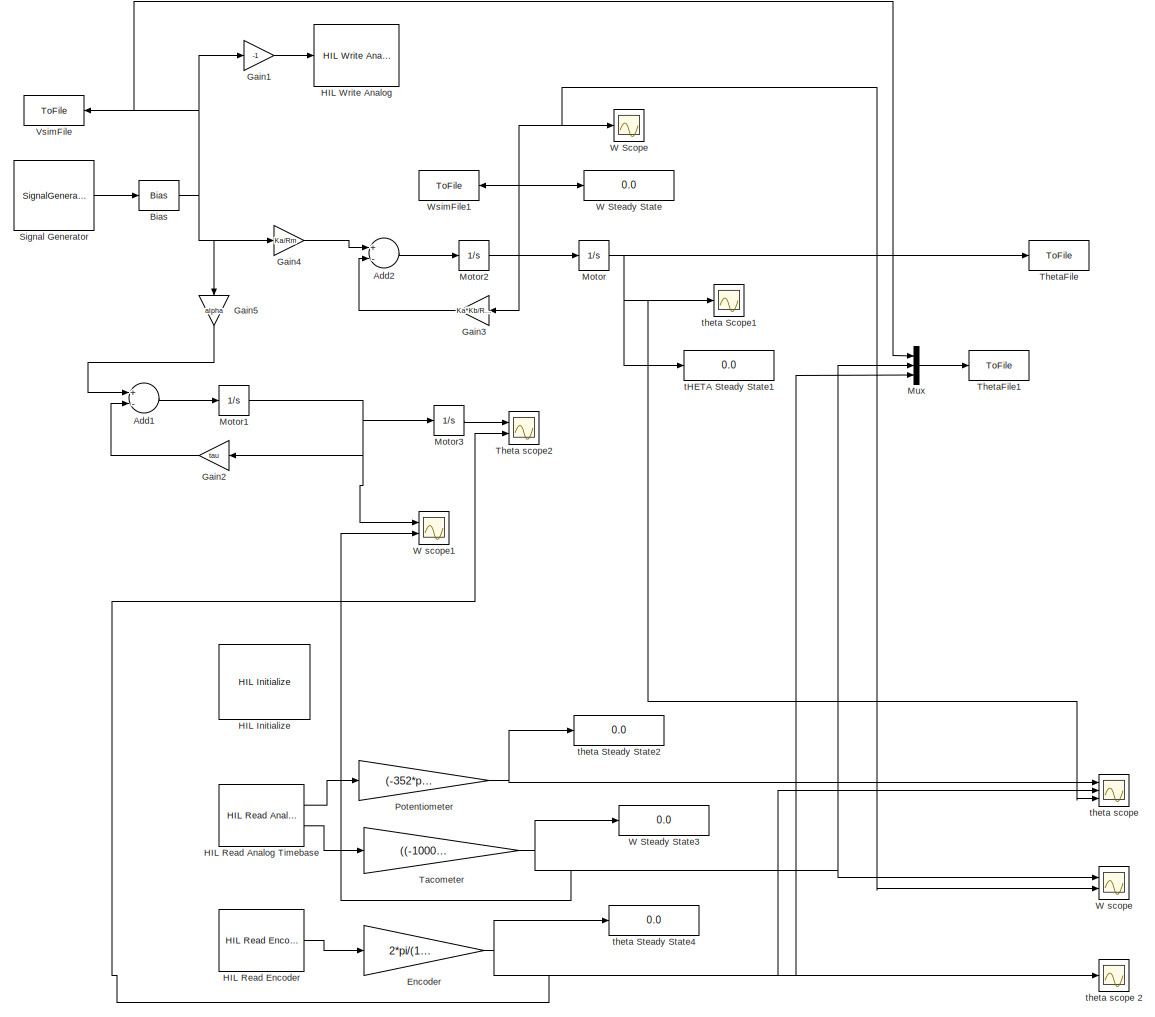
[diagram: root canvas - part 1/1, most of the canvas]
MODEL slx_6ef9ec17659f
KIND model
CONFIG AbsTol = auto
CONFIG FixedStep = 0.001
CONFIG MaxStep = auto
CONFIG MinStep = auto
CONFIG RelTol = 1e-3
CONFIG SampleTimeConstraint = Unconstrained
CONFIG Solver = ode4
CONFIG SolverMode = Auto
CONFIG SolverName = ode4
CONFIG StartTime = 0.0
CONFIG StopTime = 10
BLOCK [Sum] Add1
  InputSameDT = off
  Inputs = +-
  OutDataTypeStr = Inherit: Inherit via internal rule
  Ports = [2, 1]
  SaturateOnIntegerOverflow = off
BLOCK [Sum] Add2
  InputSameDT = off
  Inputs = +-
  OutDataTypeStr = Inherit: Inherit via internal rule
  Ports = [2, 1]
  SaturateOnIntegerOverflow = off
BLOCK [Bias] Bias
  Bias = 1.5
  SaturateOnIntegerOverflow = off
BLOCK [Gain] Encoder
  Gain = 2*pi/(1024*4)
  OutDataTypeStr = Inherit: Inherit via internal rule
  ParamDataTypeStr = Inherit: Inherit via internal rule
  SaturateOnIntegerOverflow = off
BLOCK [Gain] Gain1
  Gain = -1
  OutDataTypeStr = Inherit: Inherit via internal rule
  ParamDataTypeStr = Inherit: Inherit via internal rule
  SaturateOnIntegerOverflow = off
BLOCK [Gain] Gain2
  Gain = tau
  OutDataTypeStr = Inherit: Inherit via internal rule
  ParamDataTypeStr = Inherit: Inherit via internal rule
  SaturateOnIntegerOverflow = off
BLOCK [Gain] Gain3
  Gain = Ka*Kb/Rm + Beq/Jeq
  OutDataTypeStr = Inherit: Inherit via internal rule
  ParamDataTypeStr = Inherit: Inherit via internal rule
  SaturateOnIntegerOverflow = off
BLOCK [Gain] Gain4
  Gain = Ka/Rm
  OutDataTypeStr = Inherit: Inherit via internal rule
  ParamDataTypeStr = Inherit: Inherit via internal rule
  SaturateOnIntegerOverflow = off
BLOCK [Gain] Gain5
  Gain = alpha
  OutDataTypeStr = Inherit: Inherit via internal rule
  ParamDataTypeStr = Inherit: Inherit via internal rule
  SaturateOnIntegerOverflow = off
BLOCK [Reference] HIL Initialize  REF=quarc_library/Data Acquisition/Generic/Configuration/HIL Initialize
  AttributesFormatString = %<object_name> (%<board_type>-%<board_number>)
  Ports = []
  Priority = -99
  SourceBlock = quarc_library/Data Acquisition/Generic/Configuration/HIL Initialize
  SourceType = HIL Initialize
  UserDataPersistent = on
BLOCK [Reference] HIL Read Analog Timebase  REF=quarc_library/Data Acquisition/Generic/Timebases/HIL Read Analog
Timebase
  AttributesFormatString = (%<object_name>)
  Ports = [0, 2]
  SourceBlock = quarc_library/Data Acquisition/Generic/Timebases/HIL Read Analog\nTimebase
  SourceType = HIL Read Analog Timebase
  UserDataPersistent = on
BLOCK [Reference] HIL Read Encoder  REF=quarc_library/Data Acquisition/Generic/Immediate I//O/HIL Read Encoder
  AttributesFormatString = (%<object_name>)
  Ports = [0, 1]
  SourceBlock = quarc_library/Data Acquisition/Generic/Immediate I//O/HIL Read Encoder
  SourceType = HIL Read Encoder
  UserDataPersistent = on
BLOCK [Reference] HIL Write Analog  REF=quarc_library/Data Acquisition/Generic/Immediate I//O/HIL Write Analog
  AttributesFormatString = (%<object_name>)
  Ports = [1]
  SourceBlock = quarc_library/Data Acquisition/Generic/Immediate I//O/HIL Write Analog
  SourceType = HIL Write Analog
  UserDataPersistent = on
BLOCK [Integrator] Motor
  Ports = [1, 1]
BLOCK [Integrator] Motor1
  Ports = [1, 1]
BLOCK [Integrator] Motor2
  Ports = [1, 1]
BLOCK [Integrator] Motor3
  Ports = [1, 1]
BLOCK [Mux] Mux
  DisplayOption = bar
  Inputs = 3
  Ports = [3, 1]
BLOCK [Gain] Potentiometer
  Gain = (-352*pi/180)/10
  OutDataTypeStr = Inherit: Inherit via internal rule
  ParamDataTypeStr = Inherit: Inherit via internal rule
  SaturateOnIntegerOverflow = off
BLOCK [SignalGenerator] Signal Generator
  Frequency = 0.4
  Ports = [0, 1]
  WaveForm = square
BLOCK [Gain] Tacometer
  Gain = ((-1000*2*pi/60)/1.5)/Kg
  OutDataTypeStr = Inherit: Inherit via internal rule
  ParamDataTypeStr = Inherit: Inherit via internal rule
  SaturateOnIntegerOverflow = off
BLOCK [Scope] Theta scope2
  NumInputPorts = 2
  Ports = [2]
  ScopeSpecificationString = Simulink.scopes.TimeScopeBlockCfg('CurrentConfiguration', extmgr.ConfigurationSet(extmgr.Configuration('Core','General UI',true),extmgr.Configuration('Core','Source UI',true),extmgr.Configuration('Sources','WiredSimulink',true,'DataLoggingVariableName','ScopeData2'),extmgr.Configuration('Visuals','Time Domain',true,'SerializedDisplays',{struct('MinYLimReal','-3.18474','MaxYLimReal','28.66264','YLa...<+1760ch>
BLOCK [ToFile] ThetaFile
  Filename = ThetaSim.mat
  MatrixName = Tdata
  Ports = [1]
BLOCK [ToFile] ThetaFile1
  Filename = DataSim.mat
  MatrixName = data
  Ports = [1]
BLOCK [ToFile] VsimFile
  Filename = Vsim.mat
  MatrixName = Vdata
  Ports = [1]
BLOCK [Scope] W Scope
  Ports = [1]
  ScopeSpecificationString = Simulink.scopes.TimeScopeBlockCfg('CurrentConfiguration', extmgr.ConfigurationSet(extmgr.Configuration('Core','General UI',true),extmgr.Configuration('Core','Source UI',true),extmgr.Configuration('Sources','WiredSimulink',true),extmgr.Configuration('Visuals','Time Domain',true,'SerializedDisplays',{struct('MinYLimReal','-0.38612','MaxYLimReal','3.47504','YLabelReal','','MinYLimMag','0.00000','MaxY...<+1640ch>
BLOCK [Display] W Steady State
  Decimation = 1
  Ports = [1]
BLOCK [Display] W Steady State3
  Decimation = 1
  Ports = [1]
BLOCK [Scope] W scope
  NumInputPorts = 2
  Ports = [2]
  ScopeSpecificationString = Simulink.scopes.TimeScopeBlockCfg('CurrentConfiguration', extmgr.ConfigurationSet(extmgr.Configuration('Core','General UI',true),extmgr.Configuration('Core','Source UI',true),extmgr.Configuration('Sources','WiredSimulink',true,'DataLoggingVariableName','ScopeData3'),extmgr.Configuration('Visuals','Time Domain',true,'SerializedDisplays',{struct('MinYLimReal','-0.57658','MaxYLimReal','5.18012','YLab...<+1758ch>
BLOCK [Scope] W scope1
  NumInputPorts = 2
  Ports = [2]
  ScopeSpecificationString = Simulink.scopes.TimeScopeBlockCfg('CurrentConfiguration', extmgr.ConfigurationSet(extmgr.Configuration('Core','General UI',true),extmgr.Configuration('Core','Source UI',true),extmgr.Configuration('Sources','WiredSimulink',true,'DataLoggingVariableName','ScopeData1'),extmgr.Configuration('Visuals','Time Domain',true,'SerializedDisplays',{struct('MinYLimReal','-0.54576','MaxYLimReal','4.90269','YLab...<+1757ch>
BLOCK [ToFile] WsimFile1
  Filename = Wsim.mat
  MatrixName = Wdata
  Ports = [1]
BLOCK [Display] tHETA Steady State1
  Decimation = 1
  Ports = [1]
BLOCK [Scope] theta Scope1
  Ports = [1]
  ScopeSpecificationString = Simulink.scopes.TimeScopeBlockCfg('CurrentConfiguration', extmgr.ConfigurationSet(extmgr.Configuration('Core','General UI',true),extmgr.Configuration('Core','Source UI',true),extmgr.Configuration('Sources','WiredSimulink',true,'DataLoggingVariableName','ScopeData1'),extmgr.Configuration('Visuals','Time Domain',true,'SerializedDisplays',{struct('MinYLimReal','-0.38612','MaxYLimReal','3.47504','YLab...<+1679ch>
BLOCK [Display] theta Steady State2
  Decimation = 1
  Ports = [1]
BLOCK [Display] theta Steady State4
  Decimation = 1
  Ports = [1]
BLOCK [Scope] theta scope
  NumInputPorts = 3
  Ports = [3]
  ScopeSpecificationString = Simulink.scopes.TimeScopeBlockCfg('CurrentConfiguration', extmgr.ConfigurationSet(extmgr.Configuration('Core','General UI',true),extmgr.Configuration('Core','Source UI',true),extmgr.Configuration('Sources','WiredSimulink',true,'DataLoggingVariableName','ScopeData2'),extmgr.Configuration('Visuals','Time Domain',true,'SerializedDisplays',{struct('MinYLimReal','-7.04862','MaxYLimReal','31.47304','YLa...<+1775ch>
BLOCK [Scope] theta scope 2
  Ports = [1]
  ScopeSpecificationString = Simulink.scopes.TimeScopeBlockCfg('CurrentConfiguration', extmgr.ConfigurationSet(extmgr.Configuration('Core','General UI',true),extmgr.Configuration('Core','Source UI',true),extmgr.Configuration('Sources','WiredSimulink',true,'DataLoggingVariableName','ScopeData4'),extmgr.Configuration('Visuals','Time Domain',true,'SerializedDisplays',{struct('MinYLimReal','-9.35747','MaxYLimReal','84.21727','YLa...<+1717ch>
LINE Add1:1 -> Motor1:1
LINE Add2:1 -> Motor2:1
NET Bias:1 -> Gain1:1, Gain4:1, Gain5:1, Mux:1, VsimFile:1
NET Encoder:1 -> Mux:3, Theta scope2:2, theta Steady State4:1, theta scope 2:1, theta scope:2
LINE Gain1:1 -> HIL Write Analog:1
LINE Gain2:1 -> Add1:2
LINE Gain3:1 -> Add2:2
LINE Gain4:1 -> Add2:1
LINE Gain5:1 -> Add1:1
LINE HIL Read Analog Timebase:1 -> Potentiometer:1
LINE HIL Read Analog Timebase:2 -> Tacometer:1
LINE HIL Read Encoder:1 -> Encoder:1
NET Motor1:1 -> Gain2:1, Motor3:1, W scope1:1
NET Motor2:1 -> Gain3:1, Motor:1, W Scope:1, W Steady State:1, W scope:2, WsimFile1:1
LINE Motor3:1 -> Theta scope2:1
NET Motor:1 -> ThetaFile:1, tHETA Steady State1:1, theta Scope1:1, theta scope:3
LINE Mux:1 -> ThetaFile1:1
NET Potentiometer:1 -> theta Steady State2:1, theta scope:1
LINE Signal Generator:1 -> Bias:1
NET Tacometer:1 -> Mux:2, W Steady State3:1, W scope1:2, W scope:1
note: NET lines group one-source signal fan-out (src -> all destinations, sorted); 1:1 wires keep LINE
